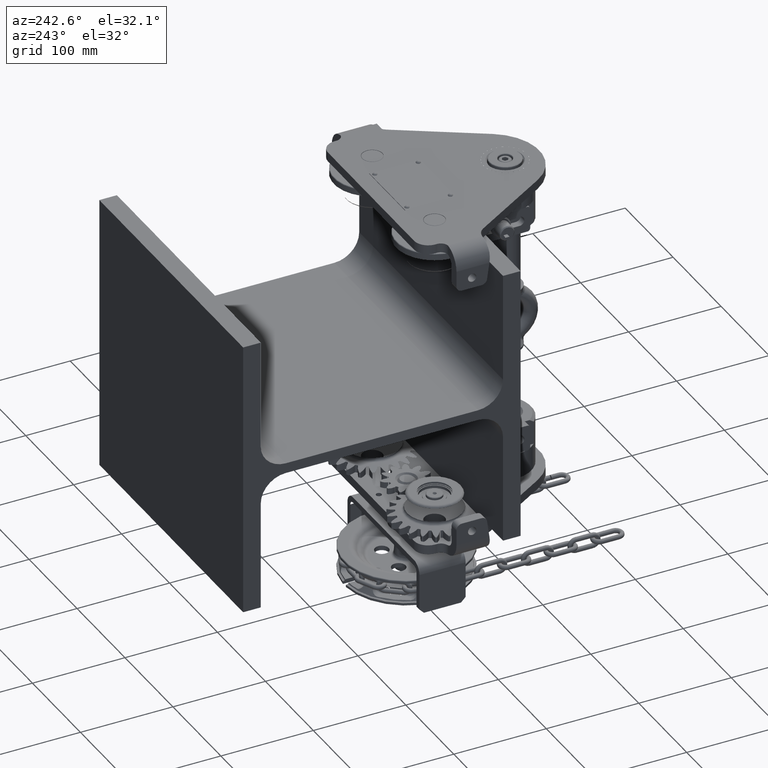
[diagram: clean part render]
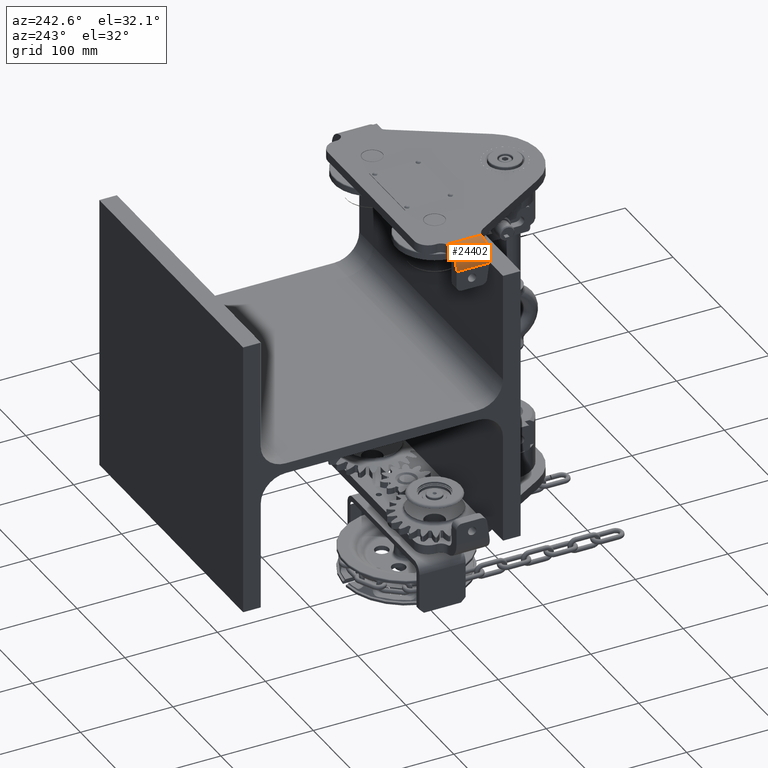
[diagram: same view with one face highlighted and labeled with its STEP entity id]
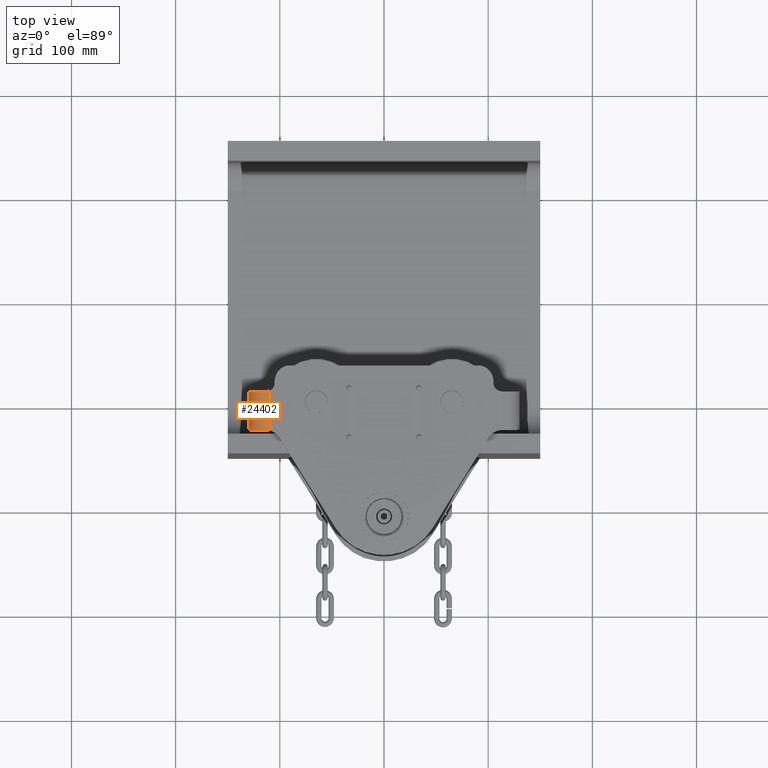
[diagram: same view with one face highlighted and labeled with its STEP entity id]
A machine part, auxiliary view. The second image highlights one B-rep face of the part: STEP entity #24402.
A second angle (top view) of the same face is appended — the face is thin or edge-on in the first view.
In plain terms, the highlighted cylindrical surface (edge-blend (fillet) strip) has radius 20 mm, axis along (0, 1, 0).
Its self-contained STEP definition (entity closure, byte-faithful):
#713 = CARTESIAN_POINT ( 'NONE',  ( -110.4806414219645100, -90.61062751544625400, 175.0000000000065100 ) ) ;
#898 = CARTESIAN_POINT ( 'NONE',  ( -113.0000000000000400, -91.00000000000103700, 174.7737199332916900 ) ) ;
#1211 = EDGE_CURVE ( 'NONE', #23161, #30776, #3444, .T. ) ;
#1582 = DIRECTION ( 'NONE',  ( -1.000000000000000000, -2.081668171172168100E-015, -1.387778780781445500E-015 ) ) ;
#3444 = B_SPLINE_CURVE_WITH_KNOTS ( 'NONE', 3,
 ( #39838, #48957, #27697, #14617 ),
 .UNSPECIFIED., .F., .F.,
 ( 4, 4 ),
 ( 0.0000000000000000000, 0.003383261461284174700 ),
 .UNSPECIFIED. ) ;
#3928 = EDGE_LOOP ( 'NONE', ( #20439, #16564, #31394, #11100, #8759, #45137, #13705 ) ) ;
#4748 = CIRCLE ( 'NONE', #28789, 20.00000000000000400 ) ;
#4913 = CARTESIAN_POINT ( 'NONE',  ( -110.9716709835081900, -90.75539241995493000, 174.9826916049159700 ) ) ;
#5069 = FACE_OUTER_BOUND ( 'NONE', #3928, .T. ) ;
#5305 = LINE ( 'NONE', #38473, #9899 ) ;
#6843 = CARTESIAN_POINT ( 'NONE',  ( -110.0000000000000400, -248.0000000000010500, 175.0000000000064800 ) ) ;
#7598 = CARTESIAN_POINT ( 'NONE',  ( -110.0000000000000300, -248.0000000000010500, 155.0000000000064800 ) ) ;
#8045 = EDGE_CURVE ( 'NONE', #29760, #23161, #23309, .T. ) ;
#8759 = ORIENTED_EDGE ( 'NONE', *, *, #32094, .T. ) ;
#9536 = CARTESIAN_POINT ( 'NONE',  ( -129.9999999999999700, -126.5945916529772300, 155.0000000000064800 ) ) ;
#9899 = VECTOR ( 'NONE', #42662, 1000.000000000000000 ) ;
#9964 = CARTESIAN_POINT ( 'NONE',  ( -110.0000000000000300, -91.00000000000103700, 155.0000000000064800 ) ) ;
#11100 = ORIENTED_EDGE ( 'NONE', *, *, #51976, .T. ) ;
#11652 = DIRECTION ( 'NONE',  ( -1.000000000000000000, 0.0000000000000000000, 0.0000000000000000000 ) ) ;
#12364 = CARTESIAN_POINT ( 'NONE',  ( -129.9999999999999700, -126.5945916529772300, 155.0000000000064800 ) ) ;
#13133 = B_SPLINE_CURVE_WITH_KNOTS ( 'NONE', 3,
 ( #30058, #713, #4913, #42718, #13300, #898 ),
 .UNSPECIFIED., .F., .F.,
 ( 4, 2, 4 ),
 ( 0.0000000000000000000, 0.001533366325088486500, 0.003066732650176973000 ),
 .UNSPECIFIED. ) ;
#13300 = CARTESIAN_POINT ( 'NONE',  ( -112.4873485003007000, -91.00000000000105200, 174.8514976354280500 ) ) ;
#13632 = DIRECTION ( 'NONE',  ( 1.000000000000000000, 0.0000000000000000000, 1.387778780781445500E-015 ) ) ;
#13705 = ORIENTED_EDGE ( 'NONE', *, *, #25525, .F. ) ;
#14617 = CARTESIAN_POINT ( 'NONE',  ( -110.0000000000000400, -128.3788870286348600, 175.0000000000064800 ) ) ;
#14848 = CYLINDRICAL_SURFACE ( 'NONE', #20903, 20.00000000000000400 ) ;
#16564 = ORIENTED_EDGE ( 'NONE', *, *, #8045, .T. ) ;
#19372 = CARTESIAN_POINT ( 'NONE',  ( -113.3500829062199100, -128.0000000000010500, 174.7174274316329000 ) ) ;
#20439 = ORIENTED_EDGE ( 'NONE', *, *, #51175, .F. ) ;
#20903 = AXIS2_PLACEMENT_3D ( 'NONE', #7598, #49109, #11652 ) ;
#21546 = VERTEX_POINT ( 'NONE', #47940 ) ;
#23161 = VERTEX_POINT ( 'NONE', #19372 ) ;
#23309 = CIRCLE ( 'NONE', #28022, 20.00000000000000400 ) ;
#23511 = LINE ( 'NONE', #6843, #54317 ) ;
#24402 = ADVANCED_FACE ( 'NONE', ( #5069 ), #14848, .T. ) ;
#24470 = CARTESIAN_POINT ( 'NONE',  ( -127.3205080756887600, -128.0000000000010500, 165.0000000000065100 ) ) ;
#25471 = DIRECTION ( 'NONE',  ( 1.720293813063386000E-032, 1.000000000000000000, 3.403643974789961000E-017 ) ) ;
#25525 = EDGE_CURVE ( 'NONE', #49018, #21546, #5305, .T. ) ;
#26487 =( BOUNDED_CURVE ( )  B_SPLINE_CURVE ( 3, ( #26669, #39555, #34745, #9536 ),
 .UNSPECIFIED., .F., .F. ) 
 B_SPLINE_CURVE_WITH_KNOTS ( ( 4, 4 ),
 ( 4.188790204786389600, 4.712388980384689700 ),
 .UNSPECIFIED. ) 
 CURVE ( )  GEOMETRIC_REPRESENTATION_ITEM ( )  RATIONAL_B_SPLINE_CURVE ( ( 1.000000000000000000, 0.9772838841927120600, 0.9772838841927120600, 1.000000000000000000 ) ) 
 REPRESENTATION_ITEM ( '' )  );
#26669 = CARTESIAN_POINT ( 'NONE',  ( -127.3205080756887600, -128.0000000000010500, 165.0000000000065100 ) ) ;
#27697 = CARTESIAN_POINT ( 'NONE',  ( -111.1101546632486900, -128.1245212927368600, 175.0000000000064800 ) ) ;
#28022 = AXIS2_PLACEMENT_3D ( 'NONE', #38875, #25471, #13632 ) ;
#28789 = AXIS2_PLACEMENT_3D ( 'NONE', #9964, #47772, #1582 ) ;
#29760 = VERTEX_POINT ( 'NONE', #24470 ) ;
#30058 = CARTESIAN_POINT ( 'NONE',  ( -110.0000000000000400, -90.41619848709670700, 175.0000000000064800 ) ) ;
#30776 = VERTEX_POINT ( 'NONE', #50344 ) ;
#31394 = ORIENTED_EDGE ( 'NONE', *, *, #1211, .T. ) ;
#32094 = EDGE_CURVE ( 'NONE', #43984, #46074, #13133, .T. ) ;
#33088 = CARTESIAN_POINT ( 'NONE',  ( -113.0000000000000400, -91.00000000000103700, 174.7737199332916900 ) ) ;
#33219 = CARTESIAN_POINT ( 'NONE',  ( -110.0000000000000400, -90.41619848709670700, 175.0000000000064800 ) ) ;
#34254 = EDGE_CURVE ( 'NONE', #46074, #21546, #4748, .T. ) ;
#34745 = CARTESIAN_POINT ( 'NONE',  ( -130.0000000000000300, -127.0908602087699300, 158.5311342560651700 ) ) ;
#38473 = CARTESIAN_POINT ( 'NONE',  ( -129.9999999999999700, -248.0000000000010500, 155.0000000000064800 ) ) ;
#38875 = CARTESIAN_POINT ( 'NONE',  ( -110.0000000000000300, -128.0000000000010500, 155.0000000000064800 ) ) ;
#39555 = CARTESIAN_POINT ( 'NONE',  ( -129.0860752037180800, -127.5702188235852400, 161.9419480300862500 ) ) ;
#39838 = CARTESIAN_POINT ( 'NONE',  ( -113.3500829062199100, -128.0000000000010500, 174.7174274316329000 ) ) ;
#42662 = DIRECTION ( 'NONE',  ( 1.720293813063386000E-032, 1.000000000000000000, 3.403643974789961000E-017 ) ) ;
#42718 = CARTESIAN_POINT ( 'NONE',  ( -111.9731535875459900, -90.95020859046272200, 174.9087612170452200 ) ) ;
#43984 = VERTEX_POINT ( 'NONE', #33219 ) ;
#45137 = ORIENTED_EDGE ( 'NONE', *, *, #34254, .T. ) ;
#46074 = VERTEX_POINT ( 'NONE', #33088 ) ;
#47772 = DIRECTION ( 'NONE',  ( 1.836766033387211700E-015, -1.000000000000000000, -3.403643974789954300E-017 ) ) ;
#47940 = CARTESIAN_POINT ( 'NONE',  ( -129.9999999999999400, -91.00000000000108000, 155.0000000000064800 ) ) ;
#48706 = DIRECTION ( 'NONE',  ( 1.720293813063386000E-032, 1.000000000000000000, 3.403643974789961000E-017 ) ) ;
#48957 = CARTESIAN_POINT ( 'NONE',  ( -112.2272514541946000, -128.0000000000010800, 174.9082017335564100 ) ) ;
#49018 = VERTEX_POINT ( 'NONE', #12364 ) ;
#49109 = DIRECTION ( 'NONE',  ( 1.720293813063386000E-032, 1.000000000000000000, 3.403643974789961000E-017 ) ) ;
#50344 = CARTESIAN_POINT ( 'NONE',  ( -110.0000000000000400, -128.3788870286348600, 175.0000000000064800 ) ) ;
#51175 = EDGE_CURVE ( 'NONE', #29760, #49018, #26487, .T. ) ;
#51976 = EDGE_CURVE ( 'NONE', #30776, #43984, #23511, .T. ) ;
#54317 = VECTOR ( 'NONE', #48706, 1000.000000000000000 ) ;